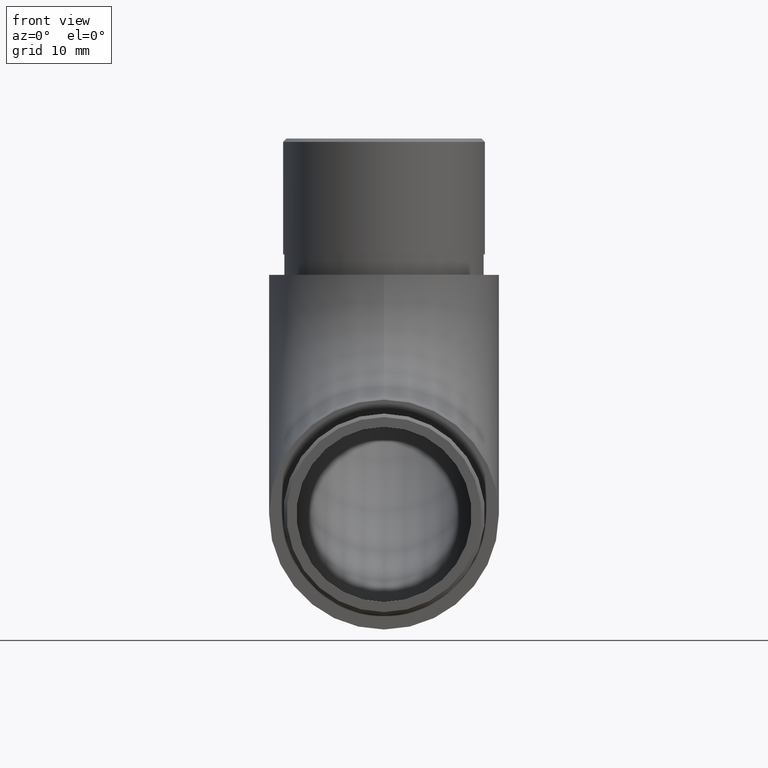
[diagram: clean part render]
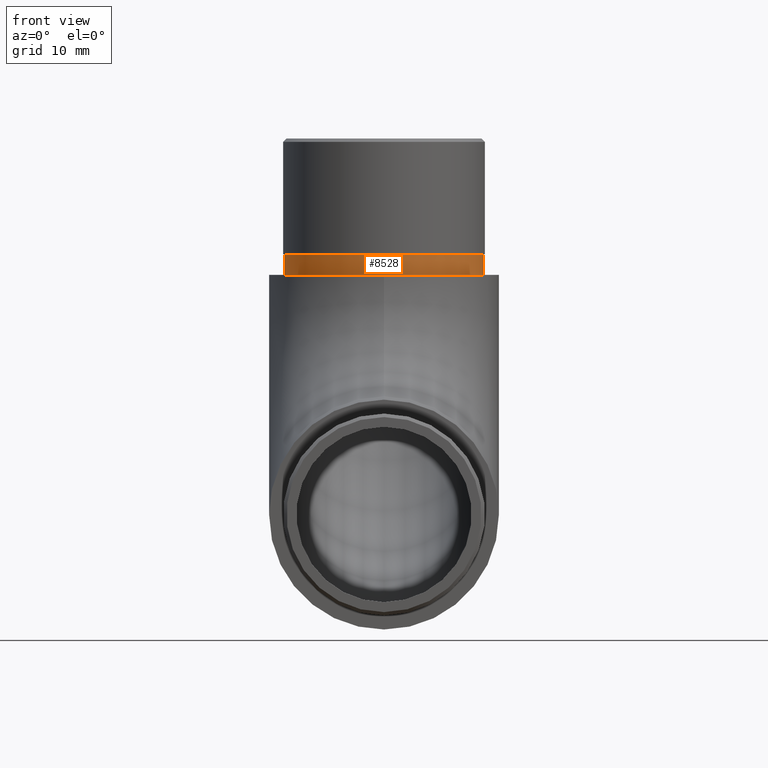
[diagram: same view with one face highlighted and labeled with its STEP entity id]
A machine part, front view. The second image highlights one B-rep face of the part: STEP entity #8528.
In plain terms, the highlighted cylindrical surface (bore or boss wall) has radius 14.6 mm, axis along (-0, -0, -1).
Its self-contained STEP definition (entity closure, byte-faithful):
#401 = AXIS2_PLACEMENT_3D ( 'NONE', #5658, #1310, #2194 ) ;
#588 = EDGE_LOOP ( 'NONE', ( #6100 ) ) ;
#734 = DIRECTION ( 'NONE',  ( -1.000000000000000000, 0.0000000000000000000, 0.0000000000000000000 ) ) ;
#1028 = ORIENTED_EDGE ( 'NONE', *, *, #1622, .F. ) ;
#1310 = DIRECTION ( 'NONE',  ( 0.0000000000000000000, 0.0000000000000000000, 1.000000000000000000 ) ) ;
#1395 = CARTESIAN_POINT ( 'NONE',  ( 0.0000000000000000000, 35.14999999999998400, 55.00000000000000000 ) ) ;
#1622 = EDGE_CURVE ( 'NONE', #9731, #9731, #4479, .T. ) ;
#2018 = FACE_OUTER_BOUND ( 'NONE', #10400, .T. ) ;
#2194 = DIRECTION ( 'NONE',  ( 1.000000000000000000, 0.0000000000000000000, 0.0000000000000000000 ) ) ;
#2545 = AXIS2_PLACEMENT_3D ( 'NONE', #9639, #8772, #2768 ) ;
#2768 = DIRECTION ( 'NONE',  ( 1.000000000000000000, 0.0000000000000000000, 0.0000000000000000000 ) ) ;
#4479 = CIRCLE ( 'NONE', #2545, 14.60000000000000100 ) ;
#4492 = CIRCLE ( 'NONE', #401, 14.60000000000000100 ) ;
#5658 = CARTESIAN_POINT ( 'NONE',  ( 0.0000000000000000000, 35.14999999999998400, 52.00000000000000000 ) ) ;
#6092 = CARTESIAN_POINT ( 'NONE',  ( 14.60000000000000100, 35.14999999999998400, 55.00000000000000000 ) ) ;
#6100 = ORIENTED_EDGE ( 'NONE', *, *, #9052, .T. ) ;
#6291 = FACE_OUTER_BOUND ( 'NONE', #588, .T. ) ;
#7126 = AXIS2_PLACEMENT_3D ( 'NONE', #1395, #8570, #734 ) ;
#7214 = CARTESIAN_POINT ( 'NONE',  ( 14.60000000000000100, 35.14999999999998400, 52.00000000000000000 ) ) ;
#8528 = ADVANCED_FACE ( 'NONE', ( #2018, #6291 ), #9994, .T. ) ;
#8570 = DIRECTION ( 'NONE',  ( -0.0000000000000000000, -0.0000000000000000000, -1.000000000000000000 ) ) ;
#8772 = DIRECTION ( 'NONE',  ( 0.0000000000000000000, 0.0000000000000000000, 1.000000000000000000 ) ) ;
#8882 = VERTEX_POINT ( 'NONE', #7214 ) ;
#9052 = EDGE_CURVE ( 'NONE', #8882, #8882, #4492, .T. ) ;
#9639 = CARTESIAN_POINT ( 'NONE',  ( 0.0000000000000000000, 35.14999999999998400, 55.00000000000000000 ) ) ;
#9731 = VERTEX_POINT ( 'NONE', #6092 ) ;
#9994 = CYLINDRICAL_SURFACE ( 'NONE', #7126, 14.60000000000000100 ) ;
#10400 = EDGE_LOOP ( 'NONE', ( #1028 ) ) ;